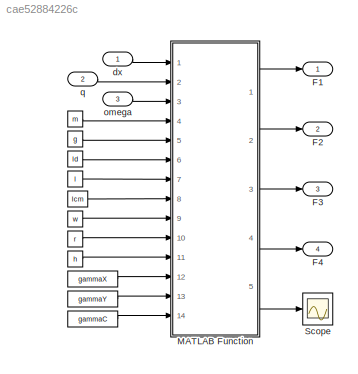
MODEL slx_cae52884226c
KIND model
CONFIG AbsTol = auto
CONFIG FixedStep = auto
CONFIG MaxStep = auto
CONFIG MinStep = auto
CONFIG RelTol = 1e-3
CONFIG SampleTimeConstraint = Unconstrained
CONFIG Solver = VariableStepAuto
CONFIG SolverMode = Auto
CONFIG SolverName = VariableStepAuto
CONFIG StartTime = 0.0
CONFIG StopTime = 10.0
BLOCK [Constant]  
  Value = ld
BLOCK [Constant]   
  Value = m
BLOCK [Constant]    
  Value = gammaX
BLOCK [Constant]     
  Value = gammaY
BLOCK [Constant]      
  Value = gammaC
BLOCK [Constant]       
  Value = w
BLOCK [Constant]        
  Value = r
BLOCK [Constant]         
  Value = h
BLOCK [Constant]           
  Value = g
BLOCK [Constant]               
  Value = l
BLOCK [Constant]                
  Value = lcm
BLOCK [Outport] F1
  IconDisplay = Port number
  PortDimensions = 3
BLOCK [Outport] F2
  IconDisplay = Port number
  Port = 2
  PortDimensions = 3
BLOCK [Outport] F3
  IconDisplay = Port number
  Port = 3
  PortDimensions = 3
BLOCK [Outport] F4
  IconDisplay = Port number
  Port = 4
  PortDimensions = 3
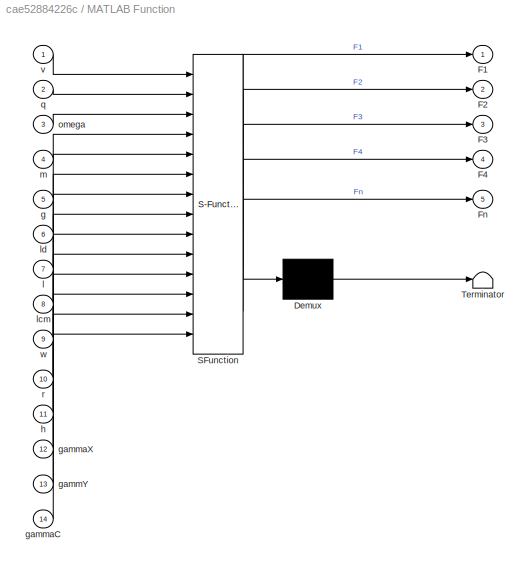
BLOCK [SubSystem] MATLAB Function
  ErrorFcn = Stateflow.Translate.translate
  PermitHierarchicalResolution = ExplicitOnly
  Ports = [14, 5]
  RequestExecContextInheritance = off
  SFBlockType = MATLAB Function
  TreatAsAtomicUnit = on
  Variant = off
BLOCK [Demux] MATLAB Function/ Demux 
  Outputs = 1
  Ports = [1, 1]
BLOCK [S-Function] MATLAB Function/ SFunction 
  EnableBusSupport = on
  FunctionName = sf_sfun
  PortCounts = [14 6]
  Ports = [14, 6]
  SFunctionDeploymentMode = off
  Tag = Stateflow S-Function friction_model_stiction_coloumb 2
BLOCK [Terminator] MATLAB Function/ Terminator 
BLOCK [Outport] MATLAB Function/F1
  IconDisplay = Port number
BLOCK [Outport] MATLAB Function/F2
  IconDisplay = Port number
  Port = 2
BLOCK [Outport] MATLAB Function/F3
  IconDisplay = Port number
  Port = 3
BLOCK [Outport] MATLAB Function/F4
  IconDisplay = Port number
  Port = 4
BLOCK [Outport] MATLAB Function/Fn
  IconDisplay = Port number
  Port = 5
BLOCK [Inport] MATLAB Function/g
  IconDisplay = Port number
  Port = 5
BLOCK [Inport] MATLAB Function/gammY
  IconDisplay = Port number
  Port = 13
BLOCK [Inport] MATLAB Function/gammaC
  IconDisplay = Port number
  Port = 14
BLOCK [Inport] MATLAB Function/gammaX
  IconDisplay = Port number
  Port = 12
BLOCK [Inport] MATLAB Function/h
  IconDisplay = Port number
  Port = 11
BLOCK [Inport] MATLAB Function/l
  IconDisplay = Port number
  Port = 7
BLOCK [Inport] MATLAB Function/lcm
  IconDisplay = Port number
  Port = 8
BLOCK [Inport] MATLAB Function/ld
  IconDisplay = Port number
  Port = 6
BLOCK [Inport] MATLAB Function/m
  IconDisplay = Port number
  Port = 4
BLOCK [Inport] MATLAB Function/omega
  IconDisplay = Port number
  Port = 3
BLOCK [Inport] MATLAB Function/q
  IconDisplay = Port number
  Port = 2
BLOCK [Inport] MATLAB Function/r
  IconDisplay = Port number
  Port = 10
BLOCK [Inport] MATLAB Function/v
  IconDisplay = Port number
BLOCK [Inport] MATLAB Function/w
  IconDisplay = Port number
  Port = 9
BLOCK [Scope] Scope
  Ports = [1]
  ScopeSpecificationString = Simulink.scopes.TimeScopeBlockCfg('CurrentConfiguration', extmgr.ConfigurationSet(extmgr.Configuration('Core','General UI',true),extmgr.Configuration('Core','Source UI',true),extmgr.Configuration('Sources','WiredSimulink',true,'DataLoggingLimitDataPoints',true,'DataLoggingSaveFormat','Array','DataLoggingDecimation','1','DataLoggingDecimateData',true),extmgr.Configuration('Visuals','Time Domain',tr...<+1534ch>
BLOCK [Inport] dx
  IconDisplay = Port number
  PortDimensions = 3
BLOCK [Inport] omega
  IconDisplay = Port number
  Port = 3
  PortDimensions = 3
BLOCK [Inport] q
  IconDisplay = Port number
  Port = 2
  PortDimensions = 4
LINE                :1 -> MATLAB Function:8
LINE               :1 -> MATLAB Function:7
LINE           :1 -> MATLAB Function:5
LINE         :1 -> MATLAB Function:11
LINE        :1 -> MATLAB Function:10
LINE       :1 -> MATLAB Function:9
LINE      :1 -> MATLAB Function:14
LINE     :1 -> MATLAB Function:13
LINE    :1 -> MATLAB Function:12
LINE   :1 -> MATLAB Function:4
LINE  :1 -> MATLAB Function:6
LINE MATLAB Function:1 -> F1:1
LINE MATLAB Function:2 -> F2:1
LINE MATLAB Function:3 -> F3:1
LINE MATLAB Function:4 -> F4:1
LINE MATLAB Function:5 -> Scope:1
LINE dx:1 -> MATLAB Function:1
LINE omega:1 -> MATLAB Function:3
LINE q:1 -> MATLAB Function:2
CHART MATLAB Function states=1 transitions=1
  STATE_LABEL 'eML_blk_kernel()'
  STATE_LABEL "SCRIPT:\nfunction [F1, F2, F3, F4, Fn] = fcn(v, q, omega, m, g, ld, l, lcm, w, r, h, gammaX, gammY, gammaC)\n%#codegen\nd1 = [0,-w,0]';\nd2 = [0,w,0]';\nd3 = [l,w,0]';\nd4 = [l,-w,0]';\nomega = [0;0;0];\nF1 = -gammaC.*(cross(d1, omega) + v);\nF2 = -gammaC.*(cross(d2, omega) + v);\nF3 = -gammaC.*(cross(d3, omega) + v);\nF4 = -gammaC.*(cross(d4, omega) + v);\nF1(3) = 0;\nF2(3) = 0;\nF3(3) = 0;\nF4(3) = 0;\nFn = [no...<+86ch>"
